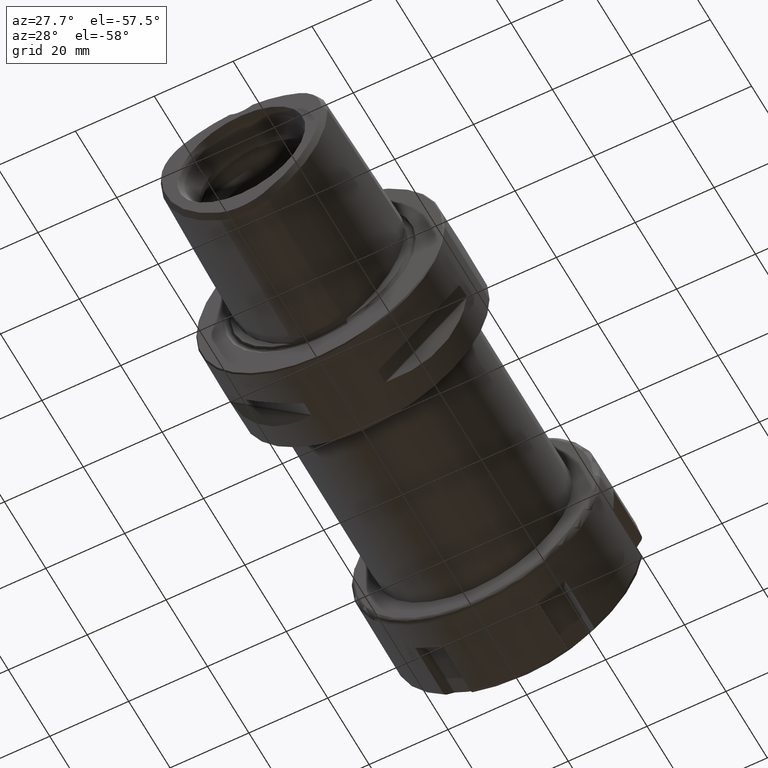
[diagram: clean part render]
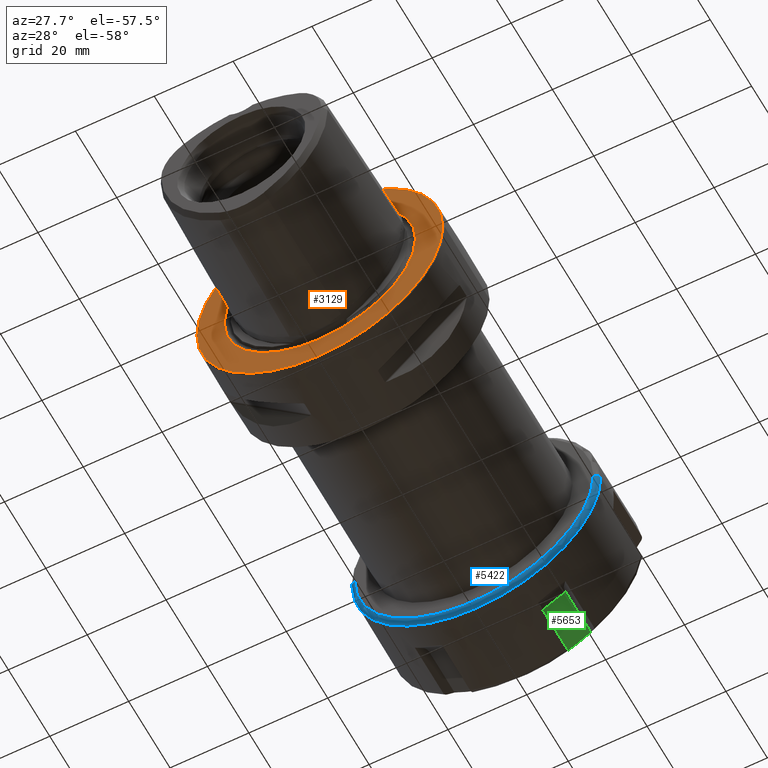
[diagram: same view with three faces highlighted in distinct colors, each labeled with its STEP entity id]
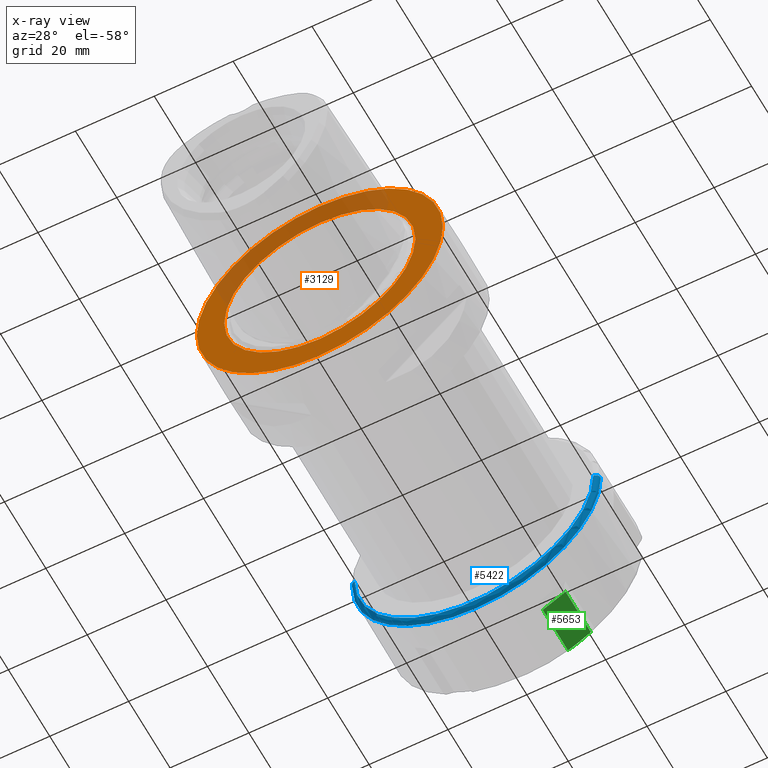
[diagram: x-ray of the same camera — body ghosted, the three highlighted faces saturated]
A machine part, auxiliary view with three faces highlighted in distinct colors.
The next image is the same camera in x-ray (body ghosted, the three faces saturated) — at least one of them is partly hidden behind the body in this view.
Their STEP definitions:

[orange] entity #3129 — the highlighted planar face has unit normal (0, -1, 0).
#1177=CARTESIAN_POINT('',(-1.936228954946E-13,4.010886343053E-7,
-3.508304757815E-13));
#1178=DIRECTION('',(0.E0,-1.E0,0.E0));
#1179=DIRECTION('',(1.E0,0.E0,1.092294200152E-14));
#1180=AXIS2_PLACEMENT_3D('',#1177,#1178,#1179);
#1182=CARTESIAN_POINT('',(2.540190280342E-13,4.010885525929E-7,
-5.062616992291E-14));
#1183=DIRECTION('',(0.E0,-1.E0,0.E0));
#1184=DIRECTION('',(-1.E0,0.E0,0.E0));
#1185=AXIS2_PLACEMENT_3D('',#1182,#1183,#1184);
#1187=CARTESIAN_POINT('',(0.E0,0.E0,0.E0));
#1188=DIRECTION('',(0.E0,-1.E0,0.E0));
#1189=DIRECTION('',(0.E0,0.E0,-1.E0));
#1190=AXIS2_PLACEMENT_3D('',#1187,#1188,#1189);
#1192=CARTESIAN_POINT('',(0.E0,0.E0,0.E0));
#1193=DIRECTION('',(0.E0,-1.E0,0.E0));
#1194=DIRECTION('',(0.E0,0.E0,1.E0));
#1195=AXIS2_PLACEMENT_3D('',#1192,#1193,#1194);
#1810=CARTESIAN_POINT('',(3.119999665778E1,4.010886343053E-7,
-1.003472184084E-14));
#1811=CARTESIAN_POINT('',(-3.119999665778E1,4.010886343053E-7,0.E0));
#1812=VERTEX_POINT('',#1810);
#1813=VERTEX_POINT('',#1811);
#1818=CARTESIAN_POINT('',(0.E0,0.E0,-2.425E1));
#1819=CARTESIAN_POINT('',(0.E0,0.E0,2.425E1));
#1820=VERTEX_POINT('',#1818);
#1821=VERTEX_POINT('',#1819);
#3114=CARTESIAN_POINT('',(0.E0,0.E0,0.E0));
#3115=DIRECTION('',(0.E0,-1.E0,0.E0));
#3116=DIRECTION('',(-1.E0,0.E0,0.E0));
#3117=AXIS2_PLACEMENT_3D('',#3114,#3115,#3116);
#3118=PLANE('',#3117);
#3120=ORIENTED_EDGE('',*,*,#3119,.F.);
#3122=ORIENTED_EDGE('',*,*,#3121,.F.);
#3123=EDGE_LOOP('',(#3120,#3122));
#3124=FACE_OUTER_BOUND('',#3123,.F.);
#3125=ORIENTED_EDGE('',*,*,#2277,.T.);
#3126=ORIENTED_EDGE('',*,*,#2142,.T.);
#3127=EDGE_LOOP('',(#3125,#3126));
#3128=FACE_BOUND('',#3127,.F.);
#3129=ADVANCED_FACE('',(#3124,#3128),#3118,.T.);
#1181=CIRCLE('',#1180,3.119999665778E1);
#1186=CIRCLE('',#1185,3.119999665778E1);
#1191=CIRCLE('',#1190,2.425E1);
#1196=CIRCLE('',#1195,2.425E1);
#2142=EDGE_CURVE('',#1821,#1820,#1196,.T.);
#2277=EDGE_CURVE('',#1820,#1821,#1191,.T.);
#3119=EDGE_CURVE('',#1812,#1813,#1181,.T.);
#3121=EDGE_CURVE('',#1813,#1812,#1186,.T.);

[blue] entity #5422 — the highlighted toroidal blend (fillet) surface has major radius 30.25 mm and minor (blend) radius 1.25 mm.
#4262=CARTESIAN_POINT('',(1.25E0,0.E0,0.E0));
#4263=DIRECTION('',(-1.E0,0.E0,0.E0));
#4264=DIRECTION('',(0.E0,1.E0,0.E0));
#4265=AXIS2_PLACEMENT_3D('',#4262,#4263,#4264);
#4659=CARTESIAN_POINT('',(1.25E0,-3.024999999997E1,-3.128053371881E-14));
#4660=DIRECTION('',(0.E0,0.E0,1.E0));
#4661=DIRECTION('',(-1.E0,0.E0,0.E0));
#4662=AXIS2_PLACEMENT_3D('',#4659,#4660,#4661);
#4664=CARTESIAN_POINT('',(0.E0,0.E0,0.E0));
#4665=DIRECTION('',(-1.E0,0.E0,0.E0));
#4666=DIRECTION('',(0.E0,1.E0,0.E0));
#4667=AXIS2_PLACEMENT_3D('',#4664,#4665,#4666);
#4674=CARTESIAN_POINT('',(1.25E0,3.024999999997E1,0.E0));
#4675=DIRECTION('',(0.E0,0.E0,-1.E0));
#4676=DIRECTION('',(-1.E0,0.E0,0.E0));
#4677=AXIS2_PLACEMENT_3D('',#4674,#4675,#4676);
#4827=CARTESIAN_POINT('',(0.E0,3.024999999997E1,1.713825516537E-14));
#4828=CARTESIAN_POINT('',(1.719369494877E-14,-3.024999999997E1,
-3.427651033073E-14));
#4829=VERTEX_POINT('',#4827);
#4830=VERTEX_POINT('',#4828);
#4831=CARTESIAN_POINT('',(1.25E0,3.149999999997E1,1.784644752757E-14));
#4832=CARTESIAN_POINT('',(1.25E0,-3.149999999997E1,-2.170408494488E-14));
#4833=VERTEX_POINT('',#4831);
#4834=VERTEX_POINT('',#4832);
#5411=CARTESIAN_POINT('',(1.25E0,0.E0,0.E0));
#5412=DIRECTION('',(1.E0,0.E0,0.E0));
#5413=DIRECTION('',(0.E0,9.999759566163E-1,6.934420614304E-3));
#5414=AXIS2_PLACEMENT_3D('',#5411,#5412,#5413);
#5415=TOROIDAL_SURFACE('',#5414,3.024999999997E1,1.25E0);
#5416=ORIENTED_EDGE('',*,*,#5405,.T.);
#5417=ORIENTED_EDGE('',*,*,#5395,.T.);
#5418=ORIENTED_EDGE('',*,*,#5068,.F.);
#5419=ORIENTED_EDGE('',*,*,#5392,.F.);
#5420=EDGE_LOOP('',(#5416,#5417,#5418,#5419));
#5421=FACE_OUTER_BOUND('',#5420,.F.);
#5422=ADVANCED_FACE('',(#5421),#5415,.T.);
#4266=CIRCLE('',#4265,3.149999999997E1);
#4663=CIRCLE('',#4662,1.25E0);
#4668=CIRCLE('',#4667,3.024999999997E1);
#4678=CIRCLE('',#4677,1.25E0);
#5068=EDGE_CURVE('',#4833,#4834,#4266,.T.);
#5392=EDGE_CURVE('',#4829,#4833,#4678,.T.);
#5395=EDGE_CURVE('',#4830,#4834,#4663,.T.);
#5405=EDGE_CURVE('',#4829,#4830,#4668,.T.);

[green] entity #5653 — the highlighted planar face has unit normal (-0.5, 0, 0.866).
#4139=CARTESIAN_POINT('',(2.351130782476E1,-1.147381489730E1,
-2.657323035877E1));
#4145=CARTESIAN_POINT('',(2.351130782476E1,-1.727618510266E1,
-2.322323035877E1));
#4146=CARTESIAN_POINT('',(2.356105051412E1,-1.663150835835E1,
-2.359543465064E1));
#4147=CARTESIAN_POINT('',(2.362777625606E1,-1.534215754233E1,
-2.433984169135E1));
#4148=CARTESIAN_POINT('',(2.362777583851E1,-1.340782996305E1,
-2.545662623995E1));
#4149=CARTESIAN_POINT('',(2.356105010187E1,-1.211848629883E1,
-2.620102915156E1));
#4150=CARTESIAN_POINT('',(2.351130782476E1,-1.147381489730E1,
-2.657323035877E1));
#4783=CARTESIAN_POINT('',(1.135837661841E1,-1.727618510266E1,
-2.322323035877E1));
#4789=DIRECTION('',(-1.E0,0.E0,0.E0));
#4790=VECTOR('',#4789,1.215293120635E1);
#4791=CARTESIAN_POINT('',(2.351130782476E1,-1.727618510266E1,
-2.322323035877E1));
#4792=LINE('',#4791,#4790);
#4793=DIRECTION('',(0.E0,-8.660254037844E-1,5.E-1));
#4794=VECTOR('',#4793,6.7E0);
#4795=CARTESIAN_POINT('',(1.135837661841E1,-1.147381489730E1,
-2.657323035877E1));
#4796=LINE('',#4795,#4794);
#4797=DIRECTION('',(-1.E0,0.E0,0.E0));
#4798=VECTOR('',#4797,1.215293120635E1);
#4799=CARTESIAN_POINT('',(2.351130782476E1,-1.147381489730E1,
-2.657323035877E1));
#4800=LINE('',#4799,#4798);
#4905=VERTEX_POINT('',#4139);
#4907=VERTEX_POINT('',#4145);
#4916=VERTEX_POINT('',#4783);
#4917=CARTESIAN_POINT('',(1.135837661841E1,-1.147381489730E1,
-2.657323035877E1));
#4918=VERTEX_POINT('',#4917);
#5641=CARTESIAN_POINT('',(2.55E1,-1.147381489730E1,-2.657323035877E1));
#5642=DIRECTION('',(0.E0,5.E-1,8.660254037844E-1));
#5643=DIRECTION('',(0.E0,-8.660254037844E-1,5.E-1));
#5644=AXIS2_PLACEMENT_3D('',#5641,#5642,#5643);
#5645=PLANE('',#5644);
#5646=ORIENTED_EDGE('',*,*,#5632,.T.);
#5647=ORIENTED_EDGE('',*,*,#5621,.F.);
#5648=ORIENTED_EDGE('',*,*,#4962,.T.);
#5650=ORIENTED_EDGE('',*,*,#5649,.T.);
#5651=EDGE_LOOP('',(#5646,#5647,#5648,#5650));
#5652=FACE_OUTER_BOUND('',#5651,.F.);
#5653=ADVANCED_FACE('',(#5652),#5645,.F.);
#4151=B_SPLINE_CURVE_WITH_KNOTS('',3,(#4145,#4146,#4147,#4148,#4149,#4150),
.UNSPECIFIED.,.F.,.F.,(4,1,1,4),(0.E0,3.333333333333E-1,6.666666666667E-1,1.E0),
.UNSPECIFIED.);
#4962=EDGE_CURVE('',#4907,#4905,#4151,.T.);
#5621=EDGE_CURVE('',#4907,#4916,#4792,.T.);
#5632=EDGE_CURVE('',#4918,#4916,#4796,.T.);
#5649=EDGE_CURVE('',#4905,#4918,#4800,.T.);